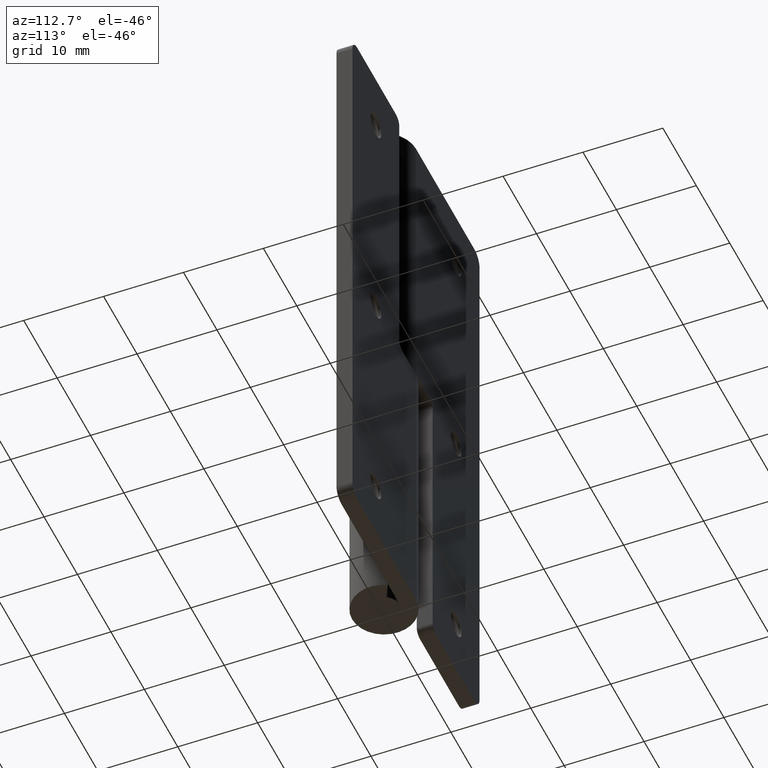
[diagram: clean part render]
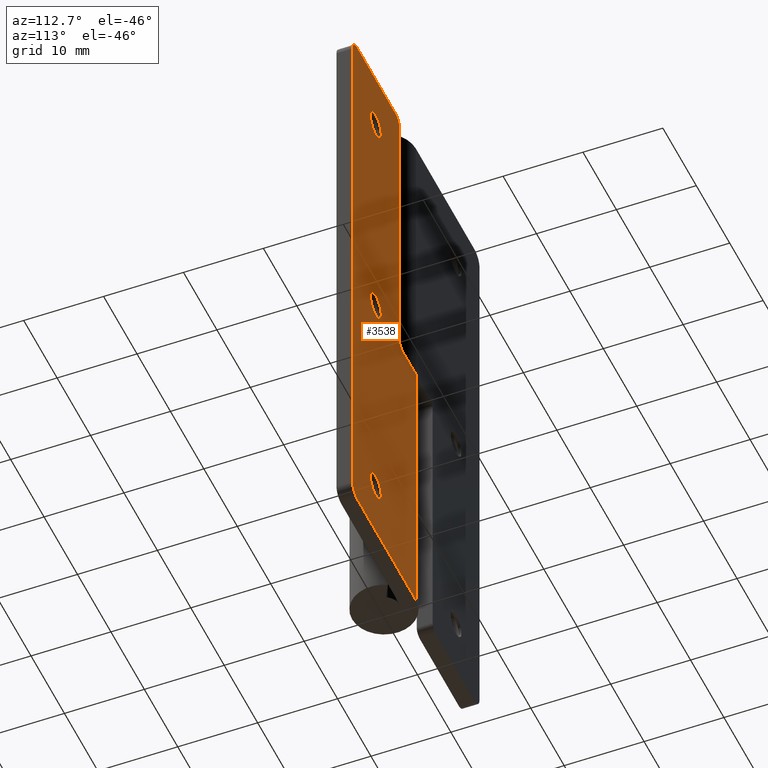
[diagram: same view with one face highlighted and labeled with its STEP entity id]
A machine part, auxiliary view. The second image highlights one B-rep face of the part: STEP entity #3538.
In plain terms, the highlighted face is a freeform B-spline surface patch.
Its self-contained STEP definition (entity closure, byte-faithful):
#1976=CARTESIAN_POINT('',(13.589550639623740,4.0,67.317438328032978));
#1977=VERTEX_POINT('',#1976);
#1983=CARTESIAN_POINT('',(12.0,4.0,65.900000000000006));
#1984=VERTEX_POINT('',#1983);
#1985=CARTESIAN_POINT('',(13.589550639623738,4.000000000000001,67.317438328032978));
#1986=CARTESIAN_POINT('',(13.426755709821201,4.000000000000000,65.900000000000006));
#1987=CARTESIAN_POINT('',(12.0,4.0,65.900000000000006));
#1995=(BOUNDED_CURVE()B_SPLINE_CURVE(2,(#1985,#1986,#1987),.UNSPECIFIED.,.F.,.U.)B_SPLINE_CURVE_WITH_KNOTS((3,3),(0.269767885422953,0.500000000000000),.UNSPECIFIED.)CURVE()GEOMETRIC_REPRESENTATION_ITEM()RATIONAL_B_SPLINE_CURVE((0.957343480918235,0.730266299549205,1.0))REPRESENTATION_ITEM(''));
#1996=EDGE_CURVE('',#1977,#1984,#1995,.T.);
#1998=CARTESIAN_POINT('',(10.402984322540650,4.0,67.402322336488652));
#1999=VERTEX_POINT('',#1998);
#2000=CARTESIAN_POINT('',(12.0,4.0,65.900000000000006));
#2001=CARTESIAN_POINT('',(10.494870293433525,4.0,65.899999999999991));
#2002=CARTESIAN_POINT('',(10.402984322540641,4.000000000000000,67.402322336488652));
#2010=(BOUNDED_CURVE()B_SPLINE_CURVE(2,(#2000,#2001,#2002),.UNSPECIFIED.,.F.,.U.)B_SPLINE_CURVE_WITH_KNOTS((3,3),(0.500000000000000,0.739332962186742),.UNSPECIFIED.)CURVE()GEOMETRIC_REPRESENTATION_ITEM()RATIONAL_B_SPLINE_CURVE((1.0,0.719603993347867,0.976072041554842))REPRESENTATION_ITEM(''));
#2011=EDGE_CURVE('',#1984,#1999,#2010,.T.);
#2110=CARTESIAN_POINT('',(12.0,4.0,69.100000000000009));
#2111=VERTEX_POINT('',#2110);
#2112=CARTESIAN_POINT('',(10.402984322540643,4.000000000000000,67.402322336488652));
#2113=CARTESIAN_POINT('',(10.400000000000004,4.0,67.451115578465973));
#2114=CARTESIAN_POINT('',(10.400000000000000,4.0,67.500000000000000));
#2115=CARTESIAN_POINT('',(10.400000000000000,4.000000000000000,69.100000000000009));
#2116=CARTESIAN_POINT('',(12.0,4.0,69.100000000000009));
#2124=(BOUNDED_CURVE()B_SPLINE_CURVE(2,(#2112,#2113,#2114,#2115,#2116),.UNSPECIFIED.,.F.,.U.)B_SPLINE_CURVE_WITH_KNOTS((3,2,3),(0.739332962186741,0.750000000000000,1.0),.UNSPECIFIED.)CURVE()GEOMETRIC_REPRESENTATION_ITEM()RATIONAL_B_SPLINE_CURVE((0.976072041554840,0.987502787838680,1.0,0.707106781186548,1.0))REPRESENTATION_ITEM(''));
#2125=EDGE_CURVE('',#1999,#2111,#2124,.T.);
#2127=CARTESIAN_POINT('',(12.0,4.0,69.100000000000009));
#2128=CARTESIAN_POINT('',(13.600000000000003,4.000000000000000,69.100000000000009));
#2129=CARTESIAN_POINT('',(13.600000000000000,4.0,67.500000000000000));
#2130=CARTESIAN_POINT('',(13.600000000000003,4.0,67.408419809571470));
#2131=CARTESIAN_POINT('',(13.589550639623738,4.000000000000001,67.317438328032978));
#2139=(BOUNDED_CURVE()B_SPLINE_CURVE(2,(#2127,#2128,#2129,#2130,#2131),.UNSPECIFIED.,.F.,.U.)B_SPLINE_CURVE_WITH_KNOTS((3,2,3),(0.0,0.250000000000000,0.269767885422953),.UNSPECIFIED.)CURVE()GEOMETRIC_REPRESENTATION_ITEM()RATIONAL_B_SPLINE_CURVE((1.0,0.707106781186548,1.0,0.976840481637342,0.957343480918235))REPRESENTATION_ITEM(''));
#2140=EDGE_CURVE('',#2111,#1977,#2139,.T.);
#2308=CARTESIAN_POINT('',(13.589550639623740,4.0,37.317438328032956));
#2309=VERTEX_POINT('',#2308);
#2315=CARTESIAN_POINT('',(12.0,4.0,35.899999999999999));
#2316=VERTEX_POINT('',#2315);
#2317=CARTESIAN_POINT('',(13.589550639623736,4.000000000000001,37.317438328032964));
#2318=CARTESIAN_POINT('',(13.426755709821190,4.000000000000001,35.899999999999999));
#2319=CARTESIAN_POINT('',(12.0,4.0,35.899999999999999));
#2327=(BOUNDED_CURVE()B_SPLINE_CURVE(2,(#2317,#2318,#2319),.UNSPECIFIED.,.F.,.U.)B_SPLINE_CURVE_WITH_KNOTS((3,3),(0.269767885422955,0.500000000000000),.UNSPECIFIED.)CURVE()GEOMETRIC_REPRESENTATION_ITEM()RATIONAL_B_SPLINE_CURVE((0.957343480918233,0.730266299549206,1.0))REPRESENTATION_ITEM(''));
#2328=EDGE_CURVE('',#2309,#2316,#2327,.T.);
#2330=CARTESIAN_POINT('',(10.402984322540650,4.0,37.402322336488638));
#2331=VERTEX_POINT('',#2330);
#2332=CARTESIAN_POINT('',(12.0,4.0,35.899999999999999));
#2333=CARTESIAN_POINT('',(10.494870293433545,4.0,35.900000000000006));
#2334=CARTESIAN_POINT('',(10.402984322540650,4.000000000000001,37.402322336488638));
#2342=(BOUNDED_CURVE()B_SPLINE_CURVE(2,(#2332,#2333,#2334),.UNSPECIFIED.,.F.,.U.)B_SPLINE_CURVE_WITH_KNOTS((3,3),(0.500000000000000,0.739332962186740),.UNSPECIFIED.)CURVE()GEOMETRIC_REPRESENTATION_ITEM()RATIONAL_B_SPLINE_CURVE((1.0,0.719603993347870,0.976072041554837))REPRESENTATION_ITEM(''));
#2343=EDGE_CURVE('',#2316,#2331,#2342,.T.);
#2442=CARTESIAN_POINT('',(12.0,4.0,39.099999999999987));
#2443=VERTEX_POINT('',#2442);
#2444=CARTESIAN_POINT('',(10.402984322540641,4.000000000000001,37.402322336488652));
#2445=CARTESIAN_POINT('',(10.399999999999999,4.0,37.451115578465959));
#2446=CARTESIAN_POINT('',(10.400000000000000,4.0,37.500000000000000));
#2447=CARTESIAN_POINT('',(10.400000000000000,4.000000000000000,39.100000000000001));
#2448=CARTESIAN_POINT('',(12.0,4.0,39.099999999999987));
#2456=(BOUNDED_CURVE()B_SPLINE_CURVE(2,(#2444,#2445,#2446,#2447,#2448),.UNSPECIFIED.,.F.,.U.)B_SPLINE_CURVE_WITH_KNOTS((3,2,3),(0.739332962186740,0.750000000000000,1.0),.UNSPECIFIED.)CURVE()GEOMETRIC_REPRESENTATION_ITEM()RATIONAL_B_SPLINE_CURVE((0.976072041554837,0.987502787838678,1.0,0.707106781186548,1.0))REPRESENTATION_ITEM(''));
#2457=EDGE_CURVE('',#2331,#2443,#2456,.T.);
#2459=CARTESIAN_POINT('',(12.0,4.0,39.099999999999987));
#2460=CARTESIAN_POINT('',(13.600000000000003,4.000000000000000,39.100000000000001));
#2461=CARTESIAN_POINT('',(13.600000000000000,4.0,37.500000000000000));
#2462=CARTESIAN_POINT('',(13.600000000000000,4.000000000000001,37.408419809571463));
#2463=CARTESIAN_POINT('',(13.589550639623736,4.000000000000001,37.317438328032964));
#2471=(BOUNDED_CURVE()B_SPLINE_CURVE(2,(#2459,#2460,#2461,#2462,#2463),.UNSPECIFIED.,.F.,.U.)B_SPLINE_CURVE_WITH_KNOTS((3,2,3),(0.0,0.250000000000000,0.269767885422955),.UNSPECIFIED.)CURVE()GEOMETRIC_REPRESENTATION_ITEM()RATIONAL_B_SPLINE_CURVE((1.0,0.707106781186548,1.0,0.976840481637341,0.957343480918233))REPRESENTATION_ITEM(''));
#2472=EDGE_CURVE('',#2443,#2309,#2471,.T.);
#2640=CARTESIAN_POINT('',(13.589550639623731,4.0,7.317438328032962));
#2641=VERTEX_POINT('',#2640);
#2647=CARTESIAN_POINT('',(12.0,4.0,5.900000000000000));
#2648=VERTEX_POINT('',#2647);
#2649=CARTESIAN_POINT('',(13.589550639623731,4.000000000000000,7.317438328032962));
#2650=CARTESIAN_POINT('',(13.426755709821188,4.000000000000001,5.899999999999999));
#2651=CARTESIAN_POINT('',(12.0,4.0,5.900000000000000));
#2659=(BOUNDED_CURVE()B_SPLINE_CURVE(2,(#2649,#2650,#2651),.UNSPECIFIED.,.F.,.U.)B_SPLINE_CURVE_WITH_KNOTS((3,3),(0.269767885422955,0.500000000000000),.UNSPECIFIED.)CURVE()GEOMETRIC_REPRESENTATION_ITEM()RATIONAL_B_SPLINE_CURVE((0.957343480918233,0.730266299549207,1.0))REPRESENTATION_ITEM(''));
#2660=EDGE_CURVE('',#2641,#2648,#2659,.T.);
#2662=CARTESIAN_POINT('',(10.402984322540650,4.0,7.402322336488647));
#2663=VERTEX_POINT('',#2662);
#2664=CARTESIAN_POINT('',(12.0,4.0,5.900000000000000));
#2665=CARTESIAN_POINT('',(10.494870293433545,4.0,5.900000000000000));
#2666=CARTESIAN_POINT('',(10.402984322540650,4.000000000000001,7.402322336488647));
#2674=(BOUNDED_CURVE()B_SPLINE_CURVE(2,(#2664,#2665,#2666),.UNSPECIFIED.,.F.,.U.)B_SPLINE_CURVE_WITH_KNOTS((3,3),(0.500000000000000,0.739332962186740),.UNSPECIFIED.)CURVE()GEOMETRIC_REPRESENTATION_ITEM()RATIONAL_B_SPLINE_CURVE((1.0,0.719603993347870,0.976072041554837))REPRESENTATION_ITEM(''));
#2675=EDGE_CURVE('',#2648,#2663,#2674,.T.);
#2774=CARTESIAN_POINT('',(12.0,4.0,9.100000000000000));
#2775=VERTEX_POINT('',#2774);
#2776=CARTESIAN_POINT('',(10.402984322540647,4.000000000000000,7.402322336488647));
#2777=CARTESIAN_POINT('',(10.400000000000006,4.0,7.451115578465960));
#2778=CARTESIAN_POINT('',(10.400000000000000,4.0,7.500000000000000));
#2779=CARTESIAN_POINT('',(10.400000000000000,4.000000000000000,9.100000000000000));
#2780=CARTESIAN_POINT('',(12.0,4.0,9.100000000000000));
#2788=(BOUNDED_CURVE()B_SPLINE_CURVE(2,(#2776,#2777,#2778,#2779,#2780),.UNSPECIFIED.,.F.,.U.)B_SPLINE_CURVE_WITH_KNOTS((3,2,3),(0.739332962186740,0.750000000000000,1.0),.UNSPECIFIED.)CURVE()GEOMETRIC_REPRESENTATION_ITEM()RATIONAL_B_SPLINE_CURVE((0.976072041554838,0.987502787838678,1.0,0.707106781186548,1.0))REPRESENTATION_ITEM(''));
#2789=EDGE_CURVE('',#2663,#2775,#2788,.T.);
#2791=CARTESIAN_POINT('',(12.0,4.0,9.100000000000000));
#2792=CARTESIAN_POINT('',(13.600000000000003,4.000000000000000,9.100000000000000));
#2793=CARTESIAN_POINT('',(13.600000000000000,4.0,7.500000000000000));
#2794=CARTESIAN_POINT('',(13.600000000000001,4.0,7.408419809571459));
#2795=CARTESIAN_POINT('',(13.589550639623738,4.000000000000000,7.317438328032962));
#2803=(BOUNDED_CURVE()B_SPLINE_CURVE(2,(#2791,#2792,#2793,#2794,#2795),.UNSPECIFIED.,.F.,.U.)B_SPLINE_CURVE_WITH_KNOTS((3,2,3),(0.0,0.250000000000000,0.269767885422955),.UNSPECIFIED.)CURVE()GEOMETRIC_REPRESENTATION_ITEM()RATIONAL_B_SPLINE_CURVE((1.0,0.707106781186548,1.0,0.976840481637341,0.957343480918233))REPRESENTATION_ITEM(''));
#2804=EDGE_CURVE('',#2775,#2641,#2803,.T.);
#2968=CARTESIAN_POINT('',(6.0,4.0,75.0));
#2969=VERTEX_POINT('',#2968);
#2975=CARTESIAN_POINT('',(5.0,4.0,74.0));
#2976=VERTEX_POINT('',#2975);
#2977=CARTESIAN_POINT('',(6.0,4.0,75.0));
#2978=CARTESIAN_POINT('',(5.000000000000001,4.000000000000000,75.000000000000014));
#2979=CARTESIAN_POINT('',(5.0,4.0,74.0));
#2987=(BOUNDED_CURVE()B_SPLINE_CURVE(2,(#2977,#2978,#2979),.UNSPECIFIED.,.F.,.U.)CURVE()GEOMETRIC_REPRESENTATION_ITEM()QUASI_UNIFORM_CURVE()RATIONAL_B_SPLINE_CURVE((1.0,0.707106781186548,1.0))REPRESENTATION_ITEM(''));
#2988=EDGE_CURVE('',#2969,#2976,#2987,.T.);
#3004=CARTESIAN_POINT('',(5.0,4.0,38.500000000000000));
#3005=VERTEX_POINT('',#3004);
#3006=CARTESIAN_POINT('',(5.0,4.0,74.0));
#3007=CARTESIAN_POINT('',(5.0,4.0,38.500000000000000));
#3008=QUASI_UNIFORM_CURVE('',1,(#3006,#3007),.UNSPECIFIED.,.F.,.U.);
#3009=EDGE_CURVE('',#2976,#3005,#3008,.T.);
#3031=CARTESIAN_POINT('',(0.0,4.0,37.500000000000000));
#3032=VERTEX_POINT('',#3031);
#3089=CARTESIAN_POINT('',(4.0,4.0,37.500000000000000));
#3090=VERTEX_POINT('',#3089);
#3096=CARTESIAN_POINT('',(4.0,4.0,37.500000000000000));
#3097=CARTESIAN_POINT('',(0.0,4.0,37.500000000000000));
#3098=QUASI_UNIFORM_CURVE('',1,(#3096,#3097),.UNSPECIFIED.,.F.,.U.);
#3099=EDGE_CURVE('',#3090,#3032,#3098,.T.);
#3119=CARTESIAN_POINT('',(4.0,4.0,37.500000000000000));
#3120=CARTESIAN_POINT('',(5.000000000000001,4.000000000000000,37.499999999999993));
#3121=CARTESIAN_POINT('',(5.0,4.0,38.500000000000000));
#3129=(BOUNDED_CURVE()B_SPLINE_CURVE(2,(#3119,#3120,#3121),.UNSPECIFIED.,.F.,.U.)CURVE()GEOMETRIC_REPRESENTATION_ITEM()QUASI_UNIFORM_CURVE()RATIONAL_B_SPLINE_CURVE((1.0,0.707106781186548,1.0))REPRESENTATION_ITEM(''));
#3130=EDGE_CURVE('',#3090,#3005,#3129,.T.);
#3180=CARTESIAN_POINT('',(19.0,4.0,73.500000000000000));
#3181=VERTEX_POINT('',#3180);
#3187=CARTESIAN_POINT('',(17.500000000000000,4.0,75.0));
#3188=VERTEX_POINT('',#3187);
#3189=CARTESIAN_POINT('',(19.0,4.0,73.500000000000000));
#3190=CARTESIAN_POINT('',(19.000000000000011,4.000000000000000,75.000000000000014));
#3191=CARTESIAN_POINT('',(17.500000000000000,4.0,75.0));
#3199=(BOUNDED_CURVE()B_SPLINE_CURVE(2,(#3189,#3190,#3191),.UNSPECIFIED.,.F.,.U.)CURVE()GEOMETRIC_REPRESENTATION_ITEM()QUASI_UNIFORM_CURVE()RATIONAL_B_SPLINE_CURVE((1.0,0.707106781186548,1.0))REPRESENTATION_ITEM(''));
#3200=EDGE_CURVE('',#3181,#3188,#3199,.T.);
#3241=CARTESIAN_POINT('',(17.500000000000000,4.0,9.947598E-014));
#3242=VERTEX_POINT('',#3241);
#3248=CARTESIAN_POINT('',(19.0,4.0,1.500000000000100));
#3249=VERTEX_POINT('',#3248);
#3250=CARTESIAN_POINT('',(17.500000000000000,4.0,9.996344E-014));
#3251=CARTESIAN_POINT('',(19.000000000000011,4.000000000000000,9.996344E-014));
#3252=CARTESIAN_POINT('',(19.0,4.0,1.500000000000100));
#3260=(BOUNDED_CURVE()B_SPLINE_CURVE(2,(#3250,#3251,#3252),.UNSPECIFIED.,.F.,.U.)CURVE()GEOMETRIC_REPRESENTATION_ITEM()QUASI_UNIFORM_CURVE()RATIONAL_B_SPLINE_CURVE((1.0,0.707106781186548,1.0))REPRESENTATION_ITEM(''));
#3261=EDGE_CURVE('',#3242,#3249,#3260,.T.);
#3312=CARTESIAN_POINT('',(0.0,4.0,0.0));
#3313=VERTEX_POINT('',#3312);
#3333=CARTESIAN_POINT('',(0.0,4.0,0.0));
#3334=CARTESIAN_POINT('',(17.500000000000000,4.0,9.947598E-014));
#3335=QUASI_UNIFORM_CURVE('',1,(#3333,#3334),.UNSPECIFIED.,.F.,.U.);
#3336=EDGE_CURVE('',#3313,#3242,#3335,.T.);
#3346=CARTESIAN_POINT('',(19.0,4.0,1.500000000000100));
#3347=CARTESIAN_POINT('',(19.0,4.0,73.500000000000000));
#3348=QUASI_UNIFORM_CURVE('',1,(#3346,#3347),.UNSPECIFIED.,.F.,.U.);
#3349=EDGE_CURVE('',#3249,#3181,#3348,.T.);
#3437=CARTESIAN_POINT('',(0.0,4.0,0.0));
#3438=CARTESIAN_POINT('',(0.0,4.0,37.500000000000000));
#3439=QUASI_UNIFORM_CURVE('',1,(#3437,#3438),.UNSPECIFIED.,.F.,.U.);
#3440=EDGE_CURVE('',#3313,#3032,#3439,.T.);
#3459=CARTESIAN_POINT('',(6.0,4.0,75.0));
#3460=CARTESIAN_POINT('',(17.500000000000000,4.0,75.0));
#3461=QUASI_UNIFORM_CURVE('',1,(#3459,#3460),.UNSPECIFIED.,.F.,.U.);
#3462=EDGE_CURVE('',#2969,#3188,#3461,.T.);
#3503=CARTESIAN_POINT('',(-0.949049963174314,4.0,78.746249854635451));
#3504=CARTESIAN_POINT('',(-0.949049963174314,4.0,-3.746251866292208));
#3505=CARTESIAN_POINT('',(19.949050472794021,4.0,78.746249854635451));
#3506=CARTESIAN_POINT('',(19.949050472794021,4.0,-3.746251866292208));
#3507=B_SPLINE_SURFACE_WITH_KNOTS('',1,1,((#3503,#3505),(#3504,#3506)),.UNSPECIFIED.,.F.,.F.,.U.,(2,2),(2,2),(0.0,82.492501720927663),(0.0,20.898100435968342),.UNSPECIFIED.);
#3508=ORIENTED_EDGE('',*,*,#2988,.F.);
#3509=ORIENTED_EDGE('',*,*,#3462,.T.);
#3510=ORIENTED_EDGE('',*,*,#3200,.F.);
#3511=ORIENTED_EDGE('',*,*,#3349,.F.);
#3512=ORIENTED_EDGE('',*,*,#3261,.F.);
#3513=ORIENTED_EDGE('',*,*,#3336,.F.);
#3514=ORIENTED_EDGE('',*,*,#3440,.T.);
#3515=ORIENTED_EDGE('',*,*,#3099,.F.);
#3516=ORIENTED_EDGE('',*,*,#3130,.T.);
#3517=ORIENTED_EDGE('',*,*,#3009,.F.);
#3518=EDGE_LOOP('',(#3508,#3509,#3510,#3511,#3512,#3513,#3514,#3515,#3516,#3517));
#3519=FACE_OUTER_BOUND('',#3518,.T.);
#3520=ORIENTED_EDGE('',*,*,#2675,.F.);
#3521=ORIENTED_EDGE('',*,*,#2660,.F.);
#3522=ORIENTED_EDGE('',*,*,#2804,.F.);
#3523=ORIENTED_EDGE('',*,*,#2789,.F.);
#3524=EDGE_LOOP('',(#3520,#3521,#3522,#3523));
#3525=FACE_BOUND('',#3524,.T.);
#3526=ORIENTED_EDGE('',*,*,#2343,.F.);
#3527=ORIENTED_EDGE('',*,*,#2328,.F.);
#3528=ORIENTED_EDGE('',*,*,#2472,.F.);
#3529=ORIENTED_EDGE('',*,*,#2457,.F.);
#3530=EDGE_LOOP('',(#3526,#3527,#3528,#3529));
#3531=FACE_BOUND('',#3530,.T.);
#3532=ORIENTED_EDGE('',*,*,#2011,.F.);
#3533=ORIENTED_EDGE('',*,*,#1996,.F.);
#3534=ORIENTED_EDGE('',*,*,#2140,.F.);
#3535=ORIENTED_EDGE('',*,*,#2125,.F.);
#3536=EDGE_LOOP('',(#3532,#3533,#3534,#3535));
#3537=FACE_BOUND('',#3536,.T.);
#3538=ADVANCED_FACE('',(#3519,#3525,#3531,#3537),#3507,.F.);